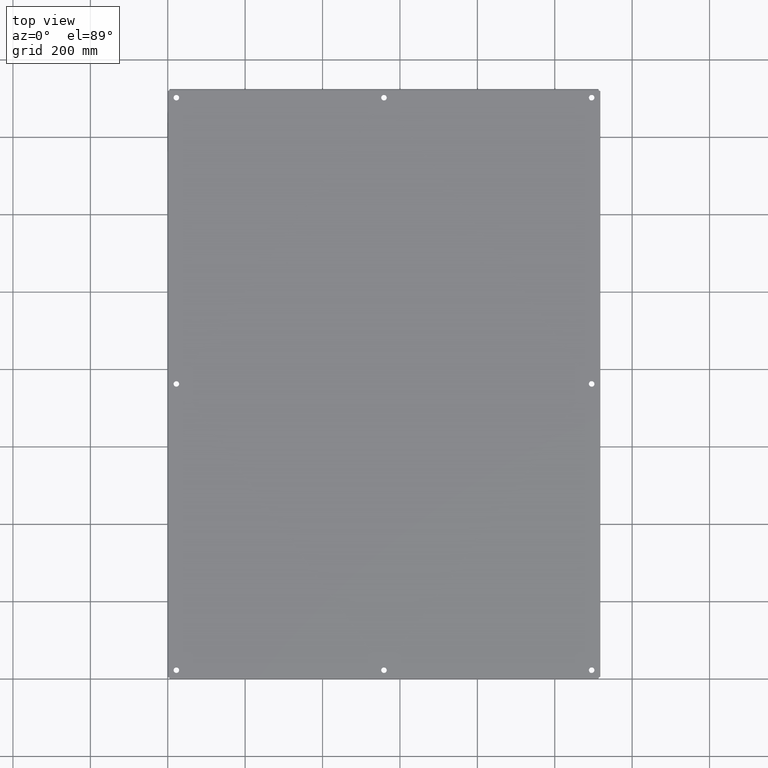
[diagram: clean part render]
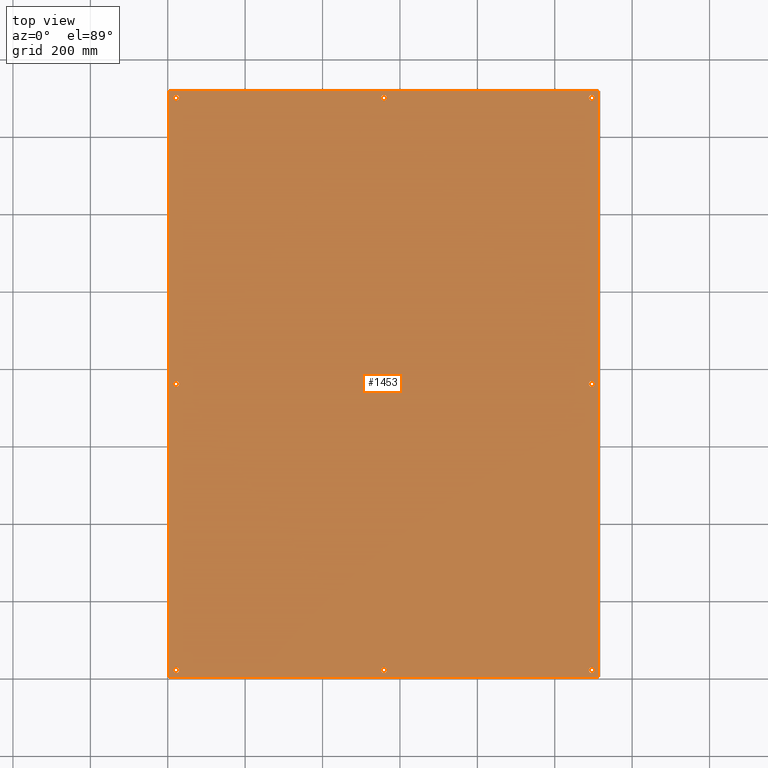
[diagram: same view with one face highlighted and labeled with its STEP entity id]
A machine part, top view. The second image highlights one B-rep face of the part: STEP entity #1453.
In plain terms, the highlighted planar face has unit normal (0, 0, 1).
Its self-contained STEP definition (entity closure, byte-faithful):
#79=CARTESIAN_POINT('',(22.28150000000004,0.874999999999976,0.125));
#80=VERTEX_POINT('',#79);
#81=CARTESIAN_POINT('',(22.000000000000043,0.874999999999976,0.125));
#82=DIRECTION('',(0.0,0.0,-1.0));
#83=DIRECTION('',(1.0,0.0,0.0));
#84=AXIS2_PLACEMENT_3D('',#81,#82,#83);
#85=CIRCLE('',#84,0.2815);
#86=EDGE_CURVE('',#80,#80,#85,.T.);
#107=CARTESIAN_POINT('',(22.281499999999998,59.124999999999993,0.125));
#108=VERTEX_POINT('',#107);
#109=CARTESIAN_POINT('',(22.0,59.124999999999993,0.125));
#110=DIRECTION('',(0.0,0.0,-1.0));
#111=DIRECTION('',(1.0,0.0,0.0));
#112=AXIS2_PLACEMENT_3D('',#109,#110,#111);
#113=CIRCLE('',#112,0.2815);
#114=EDGE_CURVE('',#108,#108,#113,.T.);
#135=CARTESIAN_POINT('',(43.406500000000001,30.000000000000004,0.125));
#136=VERTEX_POINT('',#135);
#137=CARTESIAN_POINT('',(43.125,30.000000000000004,0.125));
#138=DIRECTION('',(0.0,0.0,-1.0));
#139=DIRECTION('',(1.0,0.0,0.0));
#140=AXIS2_PLACEMENT_3D('',#137,#138,#139);
#141=CIRCLE('',#140,0.2815);
#142=EDGE_CURVE('',#136,#136,#141,.T.);
#163=CARTESIAN_POINT('',(1.156499999999991,29.999999999999996,0.125));
#164=VERTEX_POINT('',#163);
#165=CARTESIAN_POINT('',(0.874999999999991,29.999999999999996,0.125));
#166=DIRECTION('',(0.0,0.0,-1.0));
#167=DIRECTION('',(1.0,0.0,0.0));
#168=AXIS2_PLACEMENT_3D('',#165,#166,#167);
#169=CIRCLE('',#168,0.2815);
#170=EDGE_CURVE('',#164,#164,#169,.T.);
#191=CARTESIAN_POINT('',(43.406499999999994,59.124999999999986,0.125));
#192=VERTEX_POINT('',#191);
#193=CARTESIAN_POINT('',(43.124999999999986,59.124999999999986,0.125));
#194=DIRECTION('',(0.0,0.0,-1.0));
#195=DIRECTION('',(1.0,0.0,0.0));
#196=AXIS2_PLACEMENT_3D('',#193,#194,#195);
#197=CIRCLE('',#196,0.2815);
#198=EDGE_CURVE('',#192,#192,#197,.T.);
#219=CARTESIAN_POINT('',(1.156499999999982,59.124999999999993,0.125));
#220=VERTEX_POINT('',#219);
#221=CARTESIAN_POINT('',(0.874999999999982,59.124999999999993,0.125));
#222=DIRECTION('',(0.0,0.0,-1.0));
#223=DIRECTION('',(1.0,0.0,0.0));
#224=AXIS2_PLACEMENT_3D('',#221,#222,#223);
#225=CIRCLE('',#224,0.2815);
#226=EDGE_CURVE('',#220,#220,#225,.T.);
#247=CARTESIAN_POINT('',(1.156499999999976,0.875,0.125));
#248=VERTEX_POINT('',#247);
#249=CARTESIAN_POINT('',(0.874999999999976,0.875,0.125));
#250=DIRECTION('',(0.0,0.0,-1.0));
#251=DIRECTION('',(1.0,0.0,0.0));
#252=AXIS2_PLACEMENT_3D('',#249,#250,#251);
#253=CIRCLE('',#252,0.2815);
#254=EDGE_CURVE('',#248,#248,#253,.T.);
#275=CARTESIAN_POINT('',(43.406499999999994,0.875,0.125));
#276=VERTEX_POINT('',#275);
#277=CARTESIAN_POINT('',(43.124999999999986,0.875,0.125));
#278=DIRECTION('',(0.0,0.0,-1.0));
#279=DIRECTION('',(1.0,0.0,0.0));
#280=AXIS2_PLACEMENT_3D('',#277,#278,#279);
#281=CIRCLE('',#280,0.2815);
#282=EDGE_CURVE('',#276,#276,#281,.T.);
#313=CARTESIAN_POINT('',(43.859400000000001,59.859400000000008,0.125));
#314=VERTEX_POINT('',#313);
#325=CARTESIAN_POINT('',(43.859400000000008,0.1406,0.125));
#326=VERTEX_POINT('',#325);
#327=CARTESIAN_POINT('',(43.859400000000001,0.140599999999999,0.125));
#328=DIRECTION('',(0.0,1.0,0.0));
#329=VECTOR('',#328,59.718800000000009);
#330=LINE('',#327,#329);
#331=EDGE_CURVE('',#326,#314,#330,.T.);
#609=CARTESIAN_POINT('',(0.140599999999982,59.859399999999994,0.125));
#610=VERTEX_POINT('',#609);
#621=CARTESIAN_POINT('',(43.859399999999994,59.859400000000008,0.125));
#622=DIRECTION('',(-1.0,0.0,0.0));
#623=VECTOR('',#622,43.718800000000016);
#624=LINE('',#621,#623);
#625=EDGE_CURVE('',#314,#610,#624,.T.);
#889=CARTESIAN_POINT('',(0.140599999999997,0.1406,0.125));
#890=VERTEX_POINT('',#889);
#901=CARTESIAN_POINT('',(0.140599999999982,59.859399999999994,0.125));
#902=DIRECTION('',(0.0,-1.0,0.0));
#903=VECTOR('',#902,59.718799999999995);
#904=LINE('',#901,#903);
#905=EDGE_CURVE('',#610,#890,#904,.T.);
#1179=CARTESIAN_POINT('',(0.140599999999996,0.1406,0.125));
#1180=DIRECTION('',(1.0,0.0,0.0));
#1181=VECTOR('',#1180,43.718800000000016);
#1182=LINE('',#1179,#1181);
#1183=EDGE_CURVE('',#890,#326,#1182,.T.);
#1418=CARTESIAN_POINT('',(21.999999999999996,30.000000000000007,0.125));
#1419=DIRECTION('',(0.0,0.0,1.0));
#1420=DIRECTION('',(1.0,0.0,0.0));
#1421=AXIS2_PLACEMENT_3D('',#1418,#1419,#1420);
#1422=PLANE('',#1421);
#1423=ORIENTED_EDGE('',*,*,#331,.T.);
#1424=ORIENTED_EDGE('',*,*,#625,.T.);
#1425=ORIENTED_EDGE('',*,*,#905,.T.);
#1426=ORIENTED_EDGE('',*,*,#1183,.T.);
#1427=EDGE_LOOP('',(#1423,#1424,#1425,#1426));
#1428=FACE_OUTER_BOUND('',#1427,.T.);
#1429=ORIENTED_EDGE('',*,*,#86,.T.);
#1430=EDGE_LOOP('',(#1429));
#1431=FACE_BOUND('',#1430,.T.);
#1432=ORIENTED_EDGE('',*,*,#114,.T.);
#1433=EDGE_LOOP('',(#1432));
#1434=FACE_BOUND('',#1433,.T.);
#1435=ORIENTED_EDGE('',*,*,#142,.T.);
#1436=EDGE_LOOP('',(#1435));
#1437=FACE_BOUND('',#1436,.T.);
#1438=ORIENTED_EDGE('',*,*,#170,.T.);
#1439=EDGE_LOOP('',(#1438));
#1440=FACE_BOUND('',#1439,.T.);
#1441=ORIENTED_EDGE('',*,*,#198,.T.);
#1442=EDGE_LOOP('',(#1441));
#1443=FACE_BOUND('',#1442,.T.);
#1444=ORIENTED_EDGE('',*,*,#226,.T.);
#1445=EDGE_LOOP('',(#1444));
#1446=FACE_BOUND('',#1445,.T.);
#1447=ORIENTED_EDGE('',*,*,#254,.T.);
#1448=EDGE_LOOP('',(#1447));
#1449=FACE_BOUND('',#1448,.T.);
#1450=ORIENTED_EDGE('',*,*,#282,.T.);
#1451=EDGE_LOOP('',(#1450));
#1452=FACE_BOUND('',#1451,.T.);
#1453=ADVANCED_FACE('',(#1428,#1431,#1434,#1437,#1440,#1443,#1446,#1449,#1452),#1422,.T.);